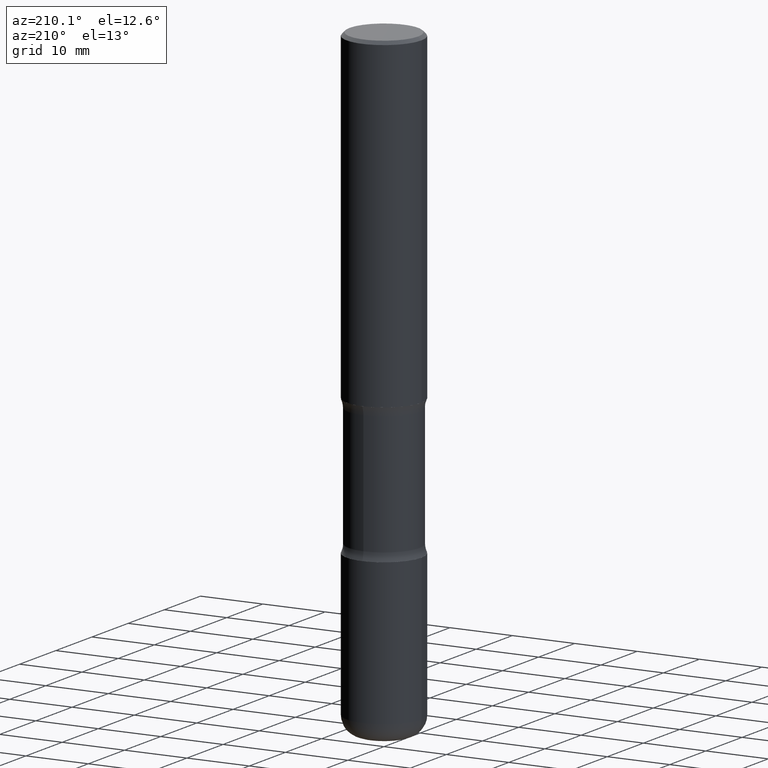
[diagram: clean part render]
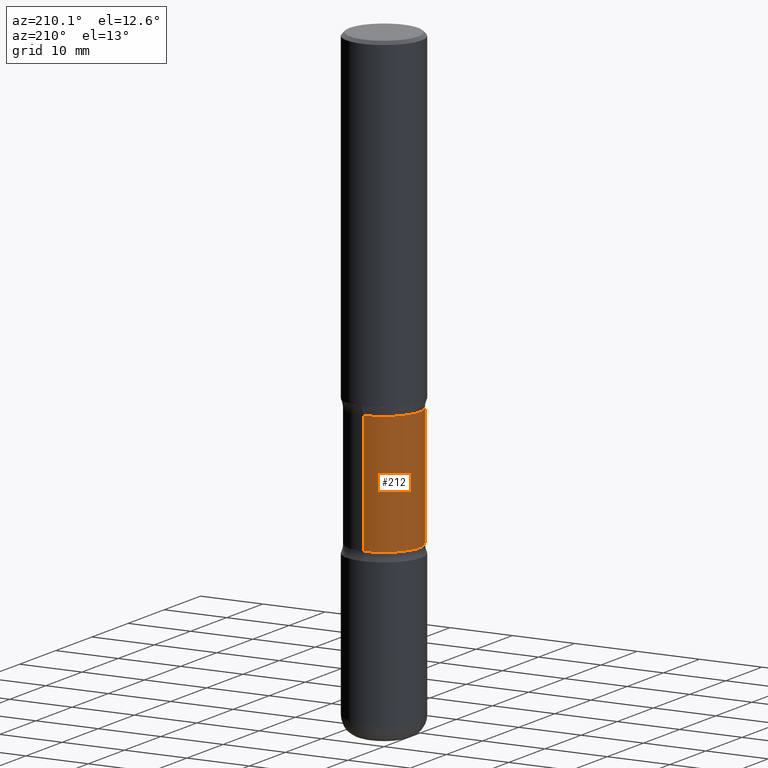
[diagram: same view with one face highlighted and labeled with its STEP entity id]
A machine part, auxiliary view. The second image highlights one B-rep face of the part: STEP entity #212.
In plain terms, the highlighted cylindrical surface (partial cylindrical patch) has radius 5.6998 mm, axis along (0, -0, -1).
Its self-contained STEP definition (entity closure, byte-faithful):
#10 = VECTOR ( 'NONE', #100, 39.37007874015748143 ) ;
#16 = ORIENTED_EDGE ( 'NONE', *, *, #42, .F. ) ;
#17 = CARTESIAN_POINT ( 'NONE',  ( 1.566976824872848494E-15, 0.2243999999999925499, -2.100216601173596320 ) ) ;
#42 = EDGE_CURVE ( 'NONE', #185, #409, #164, .T. ) ;
#49 = ORIENTED_EDGE ( 'NONE', *, *, #276, .T. ) ;
#56 = DIRECTION ( 'NONE',  ( 2.525985086076564115E-29, -3.376177443336566513E-15, -1.000000000000000000 ) ) ;
#66 = AXIS2_PLACEMENT_3D ( 'NONE', #71, #445, #457 ) ;
#71 = CARTESIAN_POINT ( 'NONE',  ( 5.070539682259229331E-29, -7.426630284172150130E-15, -2.100216601173595432 ) ) ;
#86 = CARTESIAN_POINT ( 'NONE',  ( 1.566976824872894642E-15, 0.2243999999999863049, -3.937000000000000721 ) ) ;
#99 = VERTEX_POINT ( 'NONE', #113 ) ;
#100 = DIRECTION ( 'NONE',  ( 2.525985086076564115E-29, -3.376177443336566513E-15, -1.000000000000000000 ) ) ;
#105 = CARTESIAN_POINT ( 'NONE',  ( -1.539495750699834052E-15, -0.2244000000000135608, -3.936999999999999389 ) ) ;
#113 = CARTESIAN_POINT ( 'NONE',  ( -1.579972688886734072E-15, -0.2244000000000073713, -2.100216601173594544 ) ) ;
#164 = CIRCLE ( 'NONE', #558, 0.2243999999999999606 ) ;
#171 = FACE_OUTER_BOUND ( 'NONE', #365, .T. ) ;
#185 = VERTEX_POINT ( 'NONE', #306 ) ;
#212 = ADVANCED_FACE ( 'NONE', ( #171 ), #341, .T. ) ;
#213 = CARTESIAN_POINT ( 'NONE',  ( 6.990709676060807691E-29, -9.993088279580958225E-15, -2.860383398826405354 ) ) ;
#214 = AXIS2_PLACEMENT_3D ( 'NONE', #304, #519, #259 ) ;
#230 = LINE ( 'NONE', #86, #353 ) ;
#259 = DIRECTION ( 'NONE',  ( 6.982962677686265922E-15, 1.000000000000000000, -2.434802133390609815E-15 ) ) ;
#276 = EDGE_CURVE ( 'NONE', #485, #409, #230, .T. ) ;
#290 = DIRECTION ( 'NONE',  ( 6.982962677686265922E-15, 1.000000000000000000, -2.434802133390609421E-15 ) ) ;
#301 = ORIENTED_EDGE ( 'NONE', *, *, #380, .F. ) ;
#304 = CARTESIAN_POINT ( 'NONE',  ( 9.710227154047748282E-29, -1.362793696358492956E-14, -3.937000000000000277 ) ) ;
#306 = CARTESIAN_POINT ( 'NONE',  ( -1.579972688886713168E-15, -0.2244000000000099804, -2.860383398826404466 ) ) ;
#341 = CYLINDRICAL_SURFACE ( 'NONE', #214, 0.2243999999999999329 ) ;
#353 = VECTOR ( 'NONE', #56, 39.37007874015748143 ) ;
#354 = LINE ( 'NONE', #105, #10 ) ;
#365 = EDGE_LOOP ( 'NONE', ( #301, #477, #49, #16 ) ) ;
#380 = EDGE_CURVE ( 'NONE', #99, #185, #354, .T. ) ;
#381 = DIRECTION ( 'NONE',  ( 2.525985086076564115E-29, -3.376177443336566513E-15, -1.000000000000000000 ) ) ;
#406 = CARTESIAN_POINT ( 'NONE',  ( 1.566976824872867821E-15, 0.2243999999999899686, -2.860383398826405799 ) ) ;
#409 = VERTEX_POINT ( 'NONE', #406 ) ;
#422 = EDGE_CURVE ( 'NONE', #99, #485, #461, .T. ) ;
#445 = DIRECTION ( 'NONE',  ( 2.525985086076564115E-29, -3.376177443336566513E-15, -1.000000000000000000 ) ) ;
#457 = DIRECTION ( 'NONE',  ( 6.982962677686265922E-15, 1.000000000000000000, -3.652203200085913934E-15 ) ) ;
#461 = CIRCLE ( 'NONE', #66, 0.2243999999999999606 ) ;
#477 = ORIENTED_EDGE ( 'NONE', *, *, #422, .T. ) ;
#485 = VERTEX_POINT ( 'NONE', #17 ) ;
#519 = DIRECTION ( 'NONE',  ( 2.525985086076564115E-29, -3.376177443336566513E-15, -1.000000000000000000 ) ) ;
#558 = AXIS2_PLACEMENT_3D ( 'NONE', #213, #381, #290 ) ;